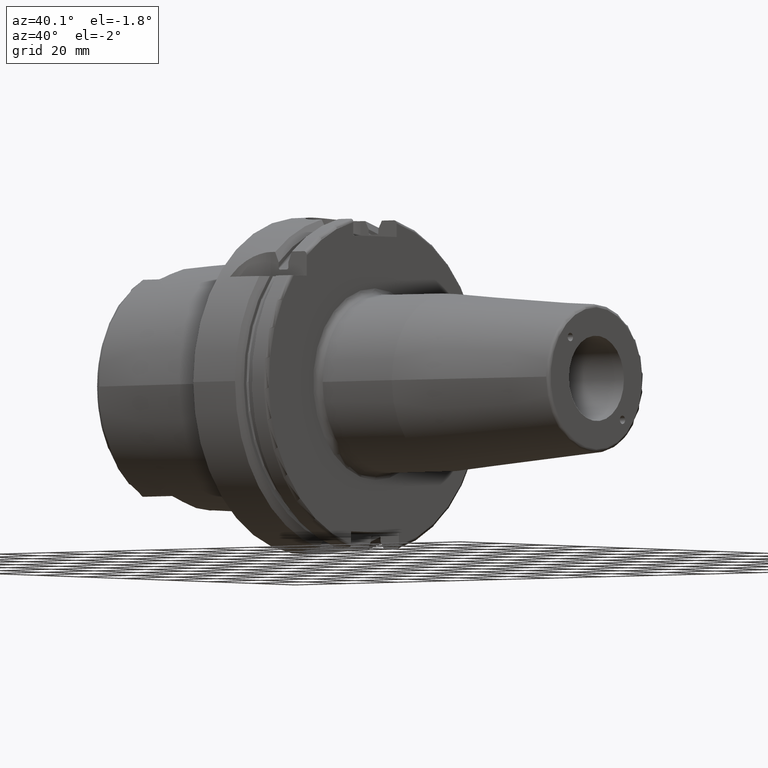
[diagram: clean part render]
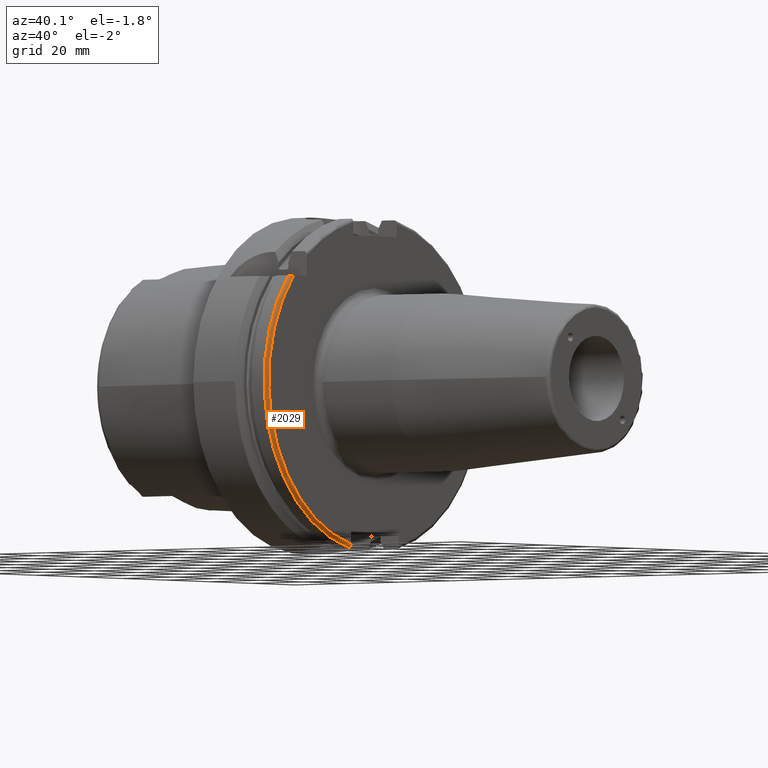
[diagram: same view with one face highlighted and labeled with its STEP entity id]
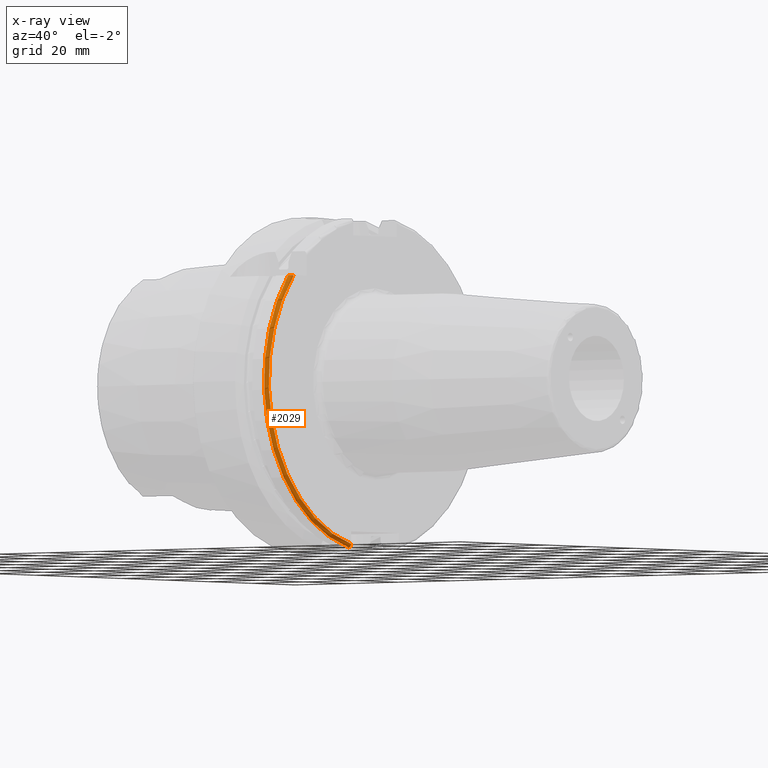
[diagram: x-ray of the same camera — body ghosted, the highlighted face saturated]
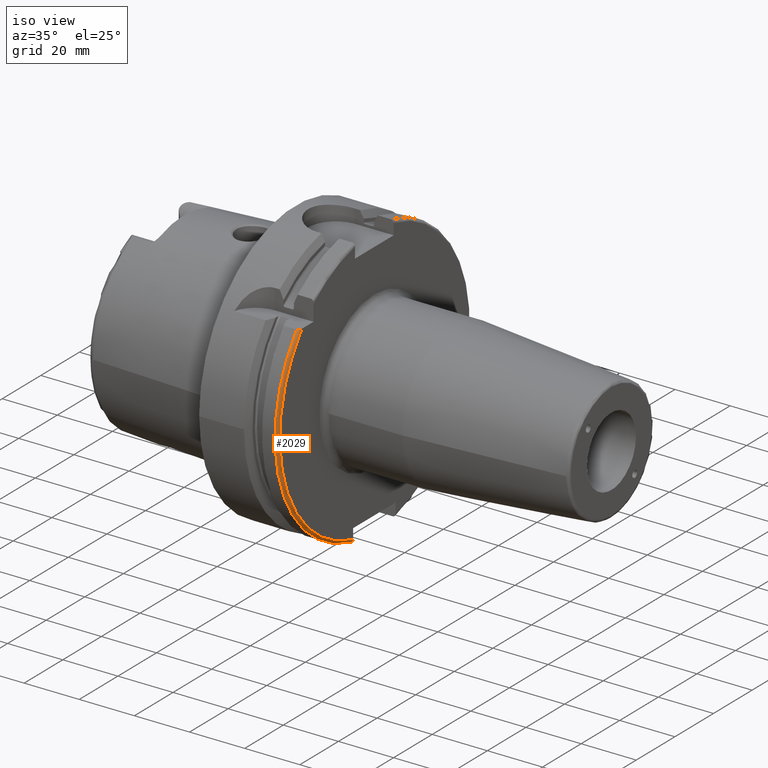
[diagram: same view with one face highlighted and labeled with its STEP entity id]
A machine part, auxiliary view. The second image highlights one B-rep face of the part: STEP entity #2029.
The next image is the same camera in x-ray: the body ghosted, the highlighted face saturated — about 0% of this face is hidden behind the body in this view.
A second angle (iso view) of the same face is appended — the face is thin or edge-on in the first view.
In plain terms, the highlighted toroidal blend (fillet) surface has major radius 49 mm and minor (blend) radius 1 mm.
Its self-contained STEP definition (entity closure, byte-faithful):
#64=B_SPLINE_CURVE_WITH_KNOTS('',3,(#3980,#3981,#3982,#3983,#3984,#3985,
#3986,#3987,#3988,#3989),.UNSPECIFIED.,.F.,.F.,(4,2,2,2,4),(-0.170825962094808,
-0.118543630596578,-0.0729156509442915,-0.0340271521483428,0.),
 .UNSPECIFIED.);
#74=B_SPLINE_CURVE_WITH_KNOTS('',3,(#4177,#4178,#4179,#4180,#4181,#4182,
#4183,#4184,#4185,#4186),.UNSPECIFIED.,.F.,.F.,(4,2,2,2,4),(0.,0.0367272650241839,
0.0739245844742874,0.111709319934006,0.150007250748607),.UNSPECIFIED.);
#144=TOROIDAL_SURFACE('',#2250,49.,1.);
#267=FACE_OUTER_BOUND('',#395,.T.);
#395=EDGE_LOOP('',(#1669,#1670,#1671,#1672));
#685=CIRCLE('',#2136,49.);
#744=CIRCLE('',#2251,50.);
#818=VERTEX_POINT('',#3038);
#819=VERTEX_POINT('',#3040);
#925=VERTEX_POINT('',#3978);
#957=VERTEX_POINT('',#4176);
#1029=EDGE_CURVE('',#818,#819,#685,.T.);
#1167=EDGE_CURVE('',#818,#925,#64,.T.);
#1213=EDGE_CURVE('',#957,#819,#74,.T.);
#1228=EDGE_CURVE('',#925,#957,#744,.T.);
#1669=ORIENTED_EDGE('',*,*,#1167,.T.);
#1670=ORIENTED_EDGE('',*,*,#1228,.T.);
#1671=ORIENTED_EDGE('',*,*,#1213,.T.);
#1672=ORIENTED_EDGE('',*,*,#1029,.F.);
#2029=ADVANCED_FACE('',(#267),#144,.T.);
#2136=AXIS2_PLACEMENT_3D('',#3041,#2426,#2427);
#2250=AXIS2_PLACEMENT_3D('',#4245,#2727,#2728);
#2251=AXIS2_PLACEMENT_3D('',#4246,#2729,#2730);
#2426=DIRECTION('center_axis',(1.,0.,0.));
#2427=DIRECTION('ref_axis',(0.,0.,-1.));
#2727=DIRECTION('center_axis',(1.,0.,0.));
#2728=DIRECTION('ref_axis',(0.,0.,-1.));
#2729=DIRECTION('center_axis',(1.,0.,0.));
#2730=DIRECTION('ref_axis',(0.,0.,-1.));
#3038=CARTESIAN_POINT('',(29.,-37.5333185316726,31.5));
#3040=CARTESIAN_POINT('',(29.,-11.,-47.7493455452533));
#3041=CARTESIAN_POINT('Origin',(29.,0.,0.));
#3978=CARTESIAN_POINT('',(28.,-38.8297566307078,31.5));
#3980=CARTESIAN_POINT('Ctrl Pts',(29.,-37.5333185316726,31.5));
#3981=CARTESIAN_POINT('Ctrl Pts',(29.,-37.7075929700001,31.5));
#3982=CARTESIAN_POINT('Ctrl Pts',(28.9664820083304,-37.9140187901503,31.5));
#3983=CARTESIAN_POINT('Ctrl Pts',(28.8572425149189,-38.2215616508799,31.5));
#3984=CARTESIAN_POINT('Ctrl Pts',(28.7693181429129,-38.3814988424326,31.5));
#3985=CARTESIAN_POINT('Ctrl Pts',(28.5860354601279,-38.5954486383736,31.5));
#3986=CARTESIAN_POINT('Ctrl Pts',(28.4650491410143,-38.6932205975694,31.5));
#3987=CARTESIAN_POINT('Ctrl Pts',(28.2458099245109,-38.7981421072727,31.5));
#3988=CARTESIAN_POINT('Ctrl Pts',(28.1134238404945,-38.8297566307078,31.5));
#3989=CARTESIAN_POINT('Ctrl Pts',(28.,-38.8297566307078,31.5));
#4176=CARTESIAN_POINT('',(28.,-11.,-48.7749935930288));
#4177=CARTESIAN_POINT('Ctrl Pts',(28.,-11.,-48.7749935930288));
#4178=CARTESIAN_POINT('Ctrl Pts',(28.1224242167473,-11.,-48.7749935930288));
#4179=CARTESIAN_POINT('Ctrl Pts',(28.2664089378791,-11.,-48.7458273107991));
#4180=CARTESIAN_POINT('Ctrl Pts',(28.4935811491945,-11.,-48.6503638235243));
#4181=CARTESIAN_POINT('Ctrl Pts',(28.6165742030546,-11.,-48.5666323605576));
#4182=CARTESIAN_POINT('Ctrl Pts',(28.7919641478885,-11.,-48.3885636593617));
#4183=CARTESIAN_POINT('Ctrl Pts',(28.8748308300651,-11.,-48.2621670900838));
#4184=CARTESIAN_POINT('Ctrl Pts',(28.9706639476237,-11.,-48.0273618911654));
#4185=CARTESIAN_POINT('Ctrl Pts',(29.,-11.,-47.8770053146353));
#4186=CARTESIAN_POINT('Ctrl Pts',(29.,-11.,-47.7493455452533));
#4245=CARTESIAN_POINT('Origin',(28.,0.,0.));
#4246=CARTESIAN_POINT('Origin',(28.,0.,0.));